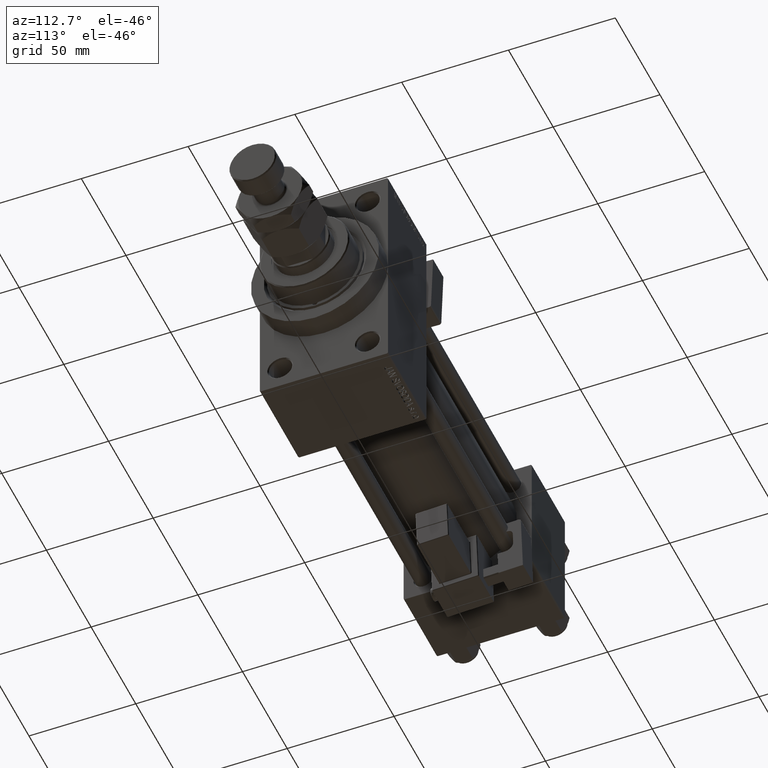
[diagram: clean part render]
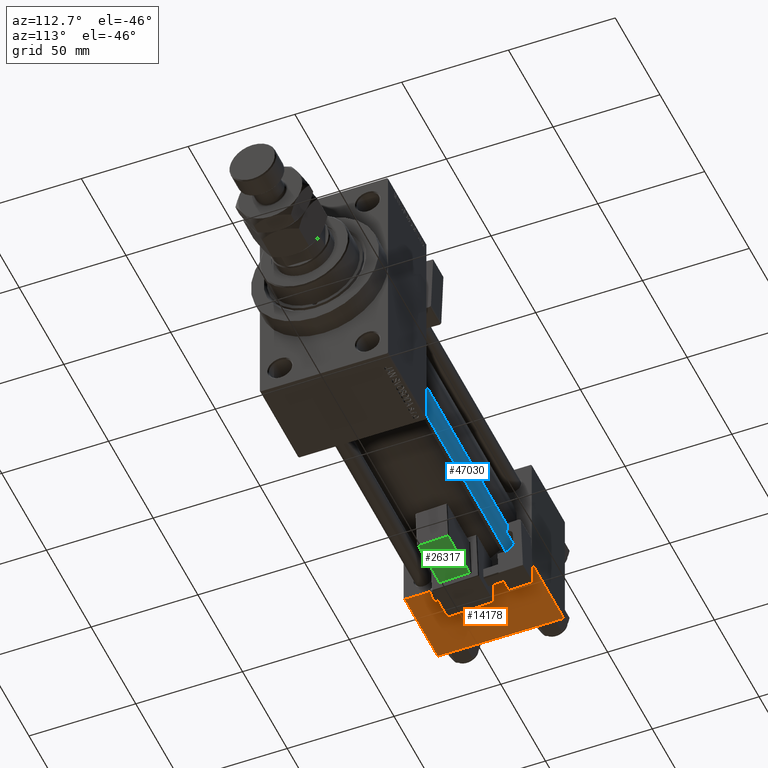
[diagram: same view with three faces highlighted in distinct colors, each labeled with its STEP entity id]
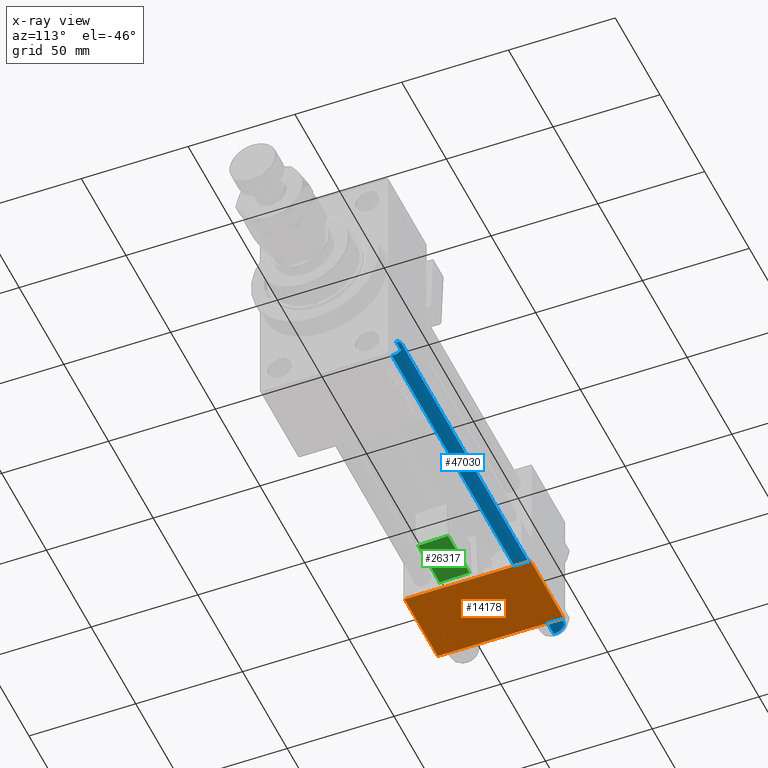
[diagram: x-ray of the same camera — body ghosted, the three highlighted faces saturated]
A machine part, auxiliary view with three faces highlighted in distinct colors.
The next image is the same camera in x-ray (body ghosted, the three faces saturated) — at least one of them is partly hidden behind the body in this view.
Their STEP definitions:

[orange] entity #14178 — the highlighted planar face has unit normal (0, 0, -1).
#725 = VERTEX_POINT ( 'NONE', #22779 ) ;
#1189 = VERTEX_POINT ( 'NONE', #33579 ) ;
#4271 = LINE ( 'NONE', #35979, #34229 ) ;
#4863 = DIRECTION ( 'NONE',  ( -1.000000000000000000, 0.000000000000000000, 0.000000000000000000 ) ) ;
#5033 = CARTESIAN_POINT ( 'NONE',  ( 0.000000000000000000, -29.50000000000000000, -30.00000000000000711 ) ) ;
#5988 = VERTEX_POINT ( 'NONE', #5033 ) ;
#6004 = DIRECTION ( 'NONE',  ( 1.000000000000000000, 0.000000000000000000, 0.000000000000000000 ) ) ;
#10496 = FACE_OUTER_BOUND ( 'NONE', #40121, .T. ) ;
#11990 = VECTOR ( 'NONE', #4863, 1000.000000000000000 ) ;
#14178 = ADVANCED_FACE ( 'NONE', ( #10496 ), #26361, .T. ) ;
#16738 = DIRECTION ( 'NONE',  ( 0.000000000000000000, -1.000000000000000000, -1.156482317317871725E-16 ) ) ;
#17799 = EDGE_CURVE ( 'NONE', #48630, #1189, #4271, .T. ) ;
#18198 = ORIENTED_EDGE ( 'NONE', *, *, #17799, .T. ) ;
#20240 = VECTOR ( 'NONE', #6004, 1000.000000000000000 ) ;
#20826 = LINE ( 'NONE', #41615, #20240 ) ;
#22288 = VECTOR ( 'NONE', #51290, 1000.000000000000000 ) ;
#22779 = CARTESIAN_POINT ( 'NONE',  ( 0.000000000000000000, 29.49999999999997868, -30.00000000000000000 ) ) ;
#24628 = LINE ( 'NONE', #36306, #11990 ) ;
#26361 = PLANE ( 'NONE',  #40901 ) ;
#29482 = DIRECTION ( 'NONE',  ( 0.000000000000000000, 1.156482317317871725E-16, -1.000000000000000000 ) ) ;
#29841 = ORIENTED_EDGE ( 'NONE', *, *, #50417, .T. ) ;
#31286 = LINE ( 'NONE', #50786, #22288 ) ;
#33579 = CARTESIAN_POINT ( 'NONE',  ( 37.00000000000000000, -29.50000000000000000, -30.00000000000000711 ) ) ;
#33895 = DIRECTION ( 'NONE',  ( 0.000000000000000000, 1.000000000000000000, 1.156482317317871725E-16 ) ) ;
#34206 = ORIENTED_EDGE ( 'NONE', *, *, #48921, .T. ) ;
#34229 = VECTOR ( 'NONE', #16738, 1000.000000000000000 ) ;
#34393 = CARTESIAN_POINT ( 'NONE',  ( 37.00000000000000000, 29.49999999999997868, -30.00000000000000000 ) ) ;
#35979 = CARTESIAN_POINT ( 'NONE',  ( 37.00000000000000000, 29.99999999999999289, -30.00000000000000000 ) ) ;
#36306 = CARTESIAN_POINT ( 'NONE',  ( 0.000000000000000000, -29.50000000000001066, -30.00000000000000711 ) ) ;
#37143 = EDGE_CURVE ( 'NONE', #725, #5988, #31286, .T. ) ;
#40121 = EDGE_LOOP ( 'NONE', ( #43651, #34206, #18198, #29841 ) ) ;
#40901 = AXIS2_PLACEMENT_3D ( 'NONE', #50003, #29482, #33895 ) ;
#41615 = CARTESIAN_POINT ( 'NONE',  ( 37.00000000000000000, 29.49999999999997868, -30.00000000000000000 ) ) ;
#43651 = ORIENTED_EDGE ( 'NONE', *, *, #37143, .F. ) ;
#48630 = VERTEX_POINT ( 'NONE', #34393 ) ;
#48921 = EDGE_CURVE ( 'NONE', #725, #48630, #20826, .T. ) ;
#50003 = CARTESIAN_POINT ( 'NONE',  ( 37.00000000000000000, 29.99999999999999289, -30.00000000000000000 ) ) ;
#50417 = EDGE_CURVE ( 'NONE', #1189, #5988, #24628, .T. ) ;
#50786 = CARTESIAN_POINT ( 'NONE',  ( 0.000000000000000000, 29.99999999999999289, -30.00000000000000000 ) ) ;
#51290 = DIRECTION ( 'NONE',  ( 0.000000000000000000, -1.000000000000000000, -1.156482317317871725E-16 ) ) ;

[blue] entity #47030 — the highlighted cylindrical surface (edge-blend (fillet) strip) has radius 4 mm, axis along (1, -0, 0).
#233 = ORIENTED_EDGE ( 'NONE', *, *, #36055, .T. ) ;
#1694 = CARTESIAN_POINT ( 'NONE',  ( -4.000000000000000000, 0.000000000000000000, 181.5000000000000284 ) ) ;
#3086 = VECTOR ( 'NONE', #44941, 1000.000000000000000 ) ;
#4336 = CARTESIAN_POINT ( 'NONE',  ( 4.000000000000000000, 4.898587196589412829E-16, 181.5000000000000284 ) ) ;
#5944 = DIRECTION ( 'NONE',  ( -0.000000000000000000, -0.000000000000000000, -1.000000000000000000 ) ) ;
#8210 = VERTEX_POINT ( 'NONE', #33781 ) ;
#10627 = VECTOR ( 'NONE', #16658, 1000.000000000000000 ) ;
#12040 = ORIENTED_EDGE ( 'NONE', *, *, #33215, .F. ) ;
#12827 = DIRECTION ( 'NONE',  ( 1.000000000000000000, 0.000000000000000000, 0.000000000000000000 ) ) ;
#13398 = VERTEX_POINT ( 'NONE', #1694 ) ;
#13475 = CARTESIAN_POINT ( 'NONE',  ( 4.000000000000000000, 4.898587196589412829E-16, 182.0000000000000000 ) ) ;
#16410 = AXIS2_PLACEMENT_3D ( 'NONE', #32840, #27684, #12827 ) ;
#16658 = DIRECTION ( 'NONE',  ( -0.000000000000000000, -0.000000000000000000, -1.000000000000000000 ) ) ;
#17787 = ORIENTED_EDGE ( 'NONE', *, *, #33874, .T. ) ;
#19856 = CARTESIAN_POINT ( 'NONE',  ( 0.000000000000000000, 0.000000000000000000, 181.5000000000000284 ) ) ;
#22322 = CYLINDRICAL_SURFACE ( 'NONE', #45888, 4.000000000000000000 ) ;
#23457 = LINE ( 'NONE', #28111, #10627 ) ;
#24843 = VERTEX_POINT ( 'NONE', #27785 ) ;
#26480 = CARTESIAN_POINT ( 'NONE',  ( 0.000000000000000000, 0.000000000000000000, 182.0000000000000000 ) ) ;
#27684 = DIRECTION ( 'NONE',  ( -0.000000000000000000, -0.000000000000000000, 1.000000000000000000 ) ) ;
#27785 = CARTESIAN_POINT ( 'NONE',  ( 4.000000000000000000, 4.898587196589412829E-16, 0.4999999999999726885 ) ) ;
#28111 = CARTESIAN_POINT ( 'NONE',  ( -4.000000000000000000, 0.000000000000000000, 182.0000000000000000 ) ) ;
#32564 = EDGE_CURVE ( 'NONE', #34806, #24843, #37648, .T. ) ;
#32840 = CARTESIAN_POINT ( 'NONE',  ( 0.000000000000000000, 0.000000000000000000, 0.4999999999999726885 ) ) ;
#33040 = CIRCLE ( 'NONE', #16410, 4.000000000000000000 ) ;
#33215 = EDGE_CURVE ( 'NONE', #13398, #8210, #23457, .T. ) ;
#33550 = EDGE_LOOP ( 'NONE', ( #233, #34931, #17787, #12040 ) ) ;
#33781 = CARTESIAN_POINT ( 'NONE',  ( -4.000000000000000000, 0.000000000000000000, 0.4999999999999726885 ) ) ;
#33874 = EDGE_CURVE ( 'NONE', #24843, #8210, #33040, .T. ) ;
#34806 = VERTEX_POINT ( 'NONE', #4336 ) ;
#34931 = ORIENTED_EDGE ( 'NONE', *, *, #32564, .T. ) ;
#36055 = EDGE_CURVE ( 'NONE', #13398, #34806, #43060, .T. ) ;
#37648 = LINE ( 'NONE', #13475, #3086 ) ;
#37913 = DIRECTION ( 'NONE',  ( -1.000000000000000000, 0.000000000000000000, 0.000000000000000000 ) ) ;
#39363 = DIRECTION ( 'NONE',  ( 1.000000000000000000, 0.000000000000000000, 0.000000000000000000 ) ) ;
#42065 = FACE_OUTER_BOUND ( 'NONE', #33550, .T. ) ;
#43060 = CIRCLE ( 'NONE', #47253, 4.000000000000000000 ) ;
#44941 = DIRECTION ( 'NONE',  ( -0.000000000000000000, -0.000000000000000000, -1.000000000000000000 ) ) ;
#45888 = AXIS2_PLACEMENT_3D ( 'NONE', #26480, #5944, #37913 ) ;
#47030 = ADVANCED_FACE ( 'NONE', ( #42065 ), #22322, .T. ) ;
#47253 = AXIS2_PLACEMENT_3D ( 'NONE', #19856, #48442, #39363 ) ;
#48442 = DIRECTION ( 'NONE',  ( 0.000000000000000000, 0.000000000000000000, -1.000000000000000000 ) ) ;

[green] entity #26317 — the highlighted planar face has unit normal (-0, -0.0353, 0.9994).
#576 = CARTESIAN_POINT ( 'NONE',  ( 33.25000000000000000, -32.24999999999999289, 2.000000000000008438 ) ) ;
#1996 = PLANE ( 'NONE',  #35276 ) ;
#6414 = CARTESIAN_POINT ( 'NONE',  ( 9.250000000000005329, -31.74999999999999289, 2.000000000000005329 ) ) ;
#8532 = ORIENTED_EDGE ( 'NONE', *, *, #49458, .T. ) ;
#9038 = EDGE_LOOP ( 'NONE', ( #36026, #8532, #36743, #27119 ) ) ;
#9797 = DIRECTION ( 'NONE',  ( 1.000000000000000000, 0.000000000000000000, 1.334402673828313339E-16 ) ) ;
#10278 = CARTESIAN_POINT ( 'NONE',  ( 33.75000000000000000, -17.74999999999999645, 2.000000000000010214 ) ) ;
#10317 = DIRECTION ( 'NONE',  ( -1.334402673828313339E-16, -1.156482317317871725E-16, 1.000000000000000000 ) ) ;
#13043 = DIRECTION ( 'NONE',  ( 5.473822126268816683E-48, -1.000000000000000000, -1.156482317317871725E-16 ) ) ;
#15395 = LINE ( 'NONE', #19303, #25342 ) ;
#15502 = EDGE_CURVE ( 'NONE', #49290, #33388, #25020, .T. ) ;
#19303 = CARTESIAN_POINT ( 'NONE',  ( 9.250000000000005329, -17.24999999999999289, 2.000000000000007105 ) ) ;
#19358 = VECTOR ( 'NONE', #37570, 1000.000000000000000 ) ;
#20045 = VECTOR ( 'NONE', #13043, 1000.000000000000000 ) ;
#20128 = LINE ( 'NONE', #35724, #43511 ) ;
#21200 = VERTEX_POINT ( 'NONE', #33054 ) ;
#21728 = LINE ( 'NONE', #10278, #19358 ) ;
#24076 = VERTEX_POINT ( 'NONE', #6414 ) ;
#25020 = LINE ( 'NONE', #576, #20045 ) ;
#25342 = VECTOR ( 'NONE', #42193, 1000.000000000000000 ) ;
#26317 = ADVANCED_FACE ( 'NONE', ( #41771 ), #1996, .F. ) ;
#27119 = ORIENTED_EDGE ( 'NONE', *, *, #48253, .T. ) ;
#33054 = CARTESIAN_POINT ( 'NONE',  ( 9.250000000000005329, -17.74999999999999645, 2.000000000000006661 ) ) ;
#33388 = VERTEX_POINT ( 'NONE', #50427 ) ;
#35276 = AXIS2_PLACEMENT_3D ( 'NONE', #41512, #10317, #9797 ) ;
#35724 = CARTESIAN_POINT ( 'NONE',  ( 33.75000000000000000, -31.74999999999999289, 2.000000000000008438 ) ) ;
#35977 = DIRECTION ( 'NONE',  ( -1.000000000000000000, 0.000000000000000000, -1.334402673828313339E-16 ) ) ;
#36026 = ORIENTED_EDGE ( 'NONE', *, *, #15502, .T. ) ;
#36743 = ORIENTED_EDGE ( 'NONE', *, *, #51187, .T. ) ;
#37570 = DIRECTION ( 'NONE',  ( 1.000000000000000000, -0.000000000000000000, 1.334402673828313339E-16 ) ) ;
#41512 = CARTESIAN_POINT ( 'NONE',  ( 33.75000000000000000, -17.24999999999999289, 2.000000000000010214 ) ) ;
#41771 = FACE_OUTER_BOUND ( 'NONE', #9038, .T. ) ;
#42193 = DIRECTION ( 'NONE',  ( -1.543213096464132036E-32, 1.000000000000000000, 1.156482317317871725E-16 ) ) ;
#43511 = VECTOR ( 'NONE', #35977, 1000.000000000000000 ) ;
#46409 = CARTESIAN_POINT ( 'NONE',  ( 33.25000000000000000, -17.74999999999999645, 2.000000000000010214 ) ) ;
#48253 = EDGE_CURVE ( 'NONE', #21200, #49290, #21728, .T. ) ;
#49290 = VERTEX_POINT ( 'NONE', #46409 ) ;
#49458 = EDGE_CURVE ( 'NONE', #33388, #24076, #20128, .T. ) ;
#50427 = CARTESIAN_POINT ( 'NONE',  ( 33.25000000000000000, -31.74999999999999289, 2.000000000000008438 ) ) ;
#51187 = EDGE_CURVE ( 'NONE', #24076, #21200, #15395, .T. ) ;